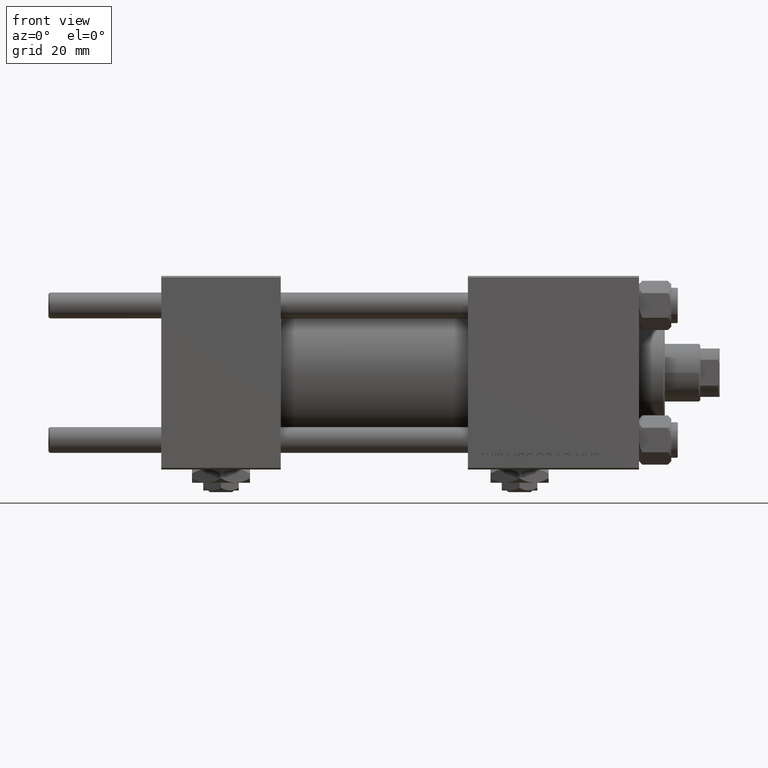
[diagram: clean part render]
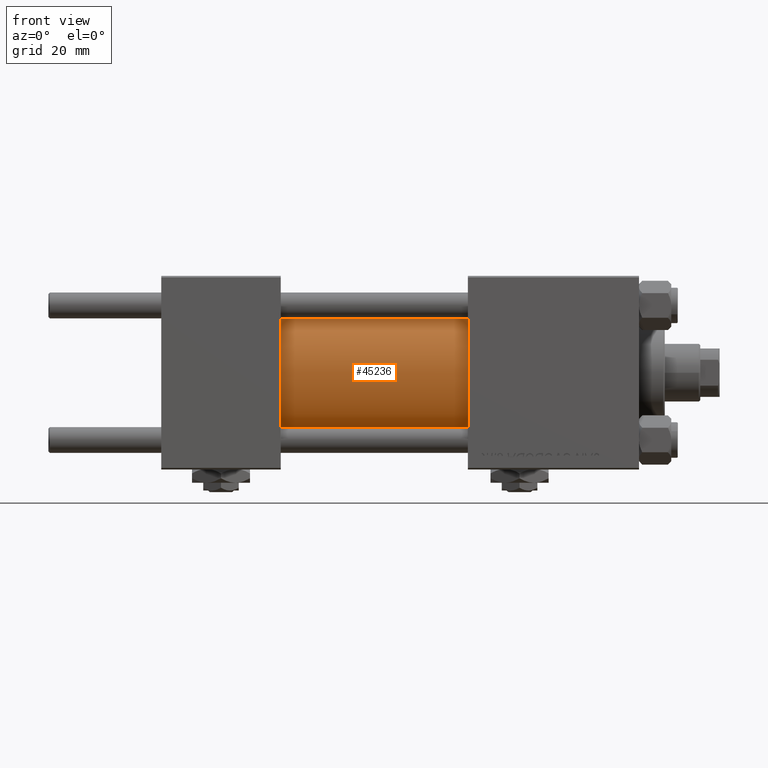
[diagram: same view with one face highlighted and labeled with its STEP entity id]
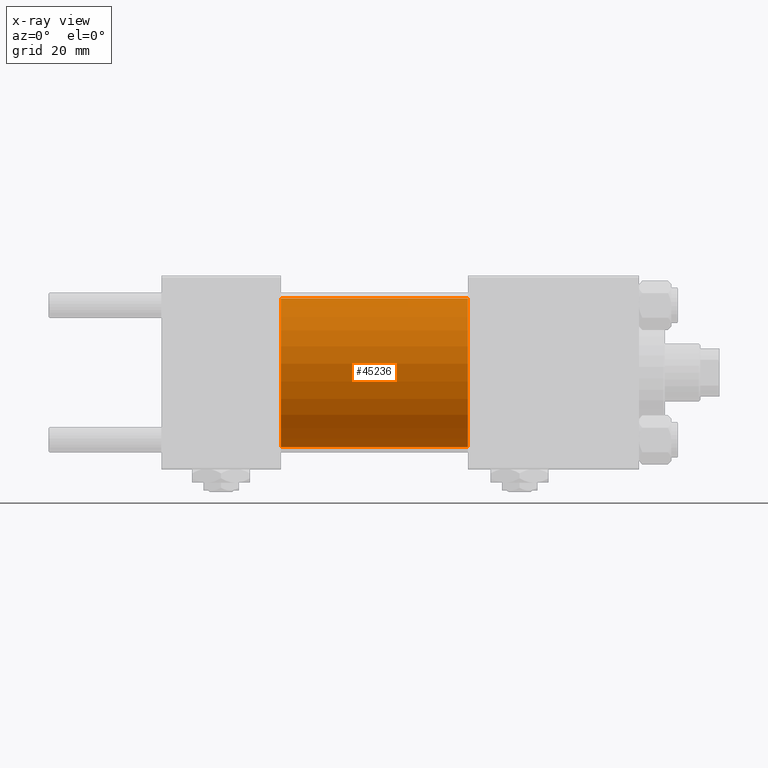
[diagram: x-ray of the same camera — body ghosted, the highlighted face saturated]
A machine part, front view. The second image highlights one B-rep face of the part: STEP entity #45236.
The next image is the same camera in x-ray: the body ghosted, the highlighted face saturated — about 0% of this face is hidden behind the body in this view.
In plain terms, the highlighted cylindrical surface (partial cylindrical patch) has radius 23 mm, axis along (-1, -0, -0).
Its self-contained STEP definition (entity closure, byte-faithful):
#982 = CYLINDRICAL_SURFACE ( 'NONE', #18693, 23.00000000000000000 ) ;
#992 = CARTESIAN_POINT ( 'NONE',  ( 37.00000000000000000, 0.000000000000000000, 0.000000000000000000 ) ) ;
#1115 = AXIS2_PLACEMENT_3D ( 'NONE', #992, #44579, #20418 ) ;
#2833 = DIRECTION ( 'NONE',  ( -1.000000000000000000, -0.000000000000000000, -0.000000000000000000 ) ) ;
#2909 = ORIENTED_EDGE ( 'NONE', *, *, #3665, .F. ) ;
#3665 = EDGE_CURVE ( 'NONE', #48627, #47737, #21680, .T. ) ;
#4836 = VERTEX_POINT ( 'NONE', #33881 ) ;
#6759 = CARTESIAN_POINT ( 'NONE',  ( 95.00000000000000000, 2.816687638038911957E-15, -23.00000000000000000 ) ) ;
#6839 = VECTOR ( 'NONE', #27447, 1000.000000000000000 ) ;
#8428 = DIRECTION ( 'NONE',  ( 0.000000000000000000, 0.000000000000000000, -1.000000000000000000 ) ) ;
#9094 = FACE_OUTER_BOUND ( 'NONE', #13047, .T. ) ;
#13013 = ORIENTED_EDGE ( 'NONE', *, *, #38482, .T. ) ;
#13047 = EDGE_LOOP ( 'NONE', ( #31605, #2909, #13013, #34772 ) ) ;
#13826 = CARTESIAN_POINT ( 'NONE',  ( 95.00000000000000000, 0.000000000000000000, 0.000000000000000000 ) ) ;
#18693 = AXIS2_PLACEMENT_3D ( 'NONE', #13826, #25400, #41409 ) ;
#20418 = DIRECTION ( 'NONE',  ( 0.000000000000000000, 0.000000000000000000, 1.000000000000000000 ) ) ;
#21680 = CIRCLE ( 'NONE', #37609, 23.00000000000000000 ) ;
#25400 = DIRECTION ( 'NONE',  ( -1.000000000000000000, -0.000000000000000000, -0.000000000000000000 ) ) ;
#25681 = CARTESIAN_POINT ( 'NONE',  ( 95.00000000000000000, 2.816687638038911957E-15, -23.00000000000000000 ) ) ;
#26089 = VECTOR ( 'NONE', #2833, 1000.000000000000000 ) ;
#26481 = LINE ( 'NONE', #6759, #26089 ) ;
#27199 = CARTESIAN_POINT ( 'NONE',  ( 95.00000000000000000, 0.000000000000000000, 23.00000000000000000 ) ) ;
#27289 = VERTEX_POINT ( 'NONE', #48224 ) ;
#27447 = DIRECTION ( 'NONE',  ( -1.000000000000000000, -0.000000000000000000, -0.000000000000000000 ) ) ;
#28393 = CARTESIAN_POINT ( 'NONE',  ( 95.00000000000000000, 0.000000000000000000, 23.00000000000000000 ) ) ;
#31605 = ORIENTED_EDGE ( 'NONE', *, *, #36999, .F. ) ;
#33881 = CARTESIAN_POINT ( 'NONE',  ( 37.00000000000000000, 2.816687638038911957E-15, -23.00000000000000000 ) ) ;
#34772 = ORIENTED_EDGE ( 'NONE', *, *, #46839, .T. ) ;
#36999 = EDGE_CURVE ( 'NONE', #47737, #4836, #26481, .T. ) ;
#37609 = AXIS2_PLACEMENT_3D ( 'NONE', #41261, #40992, #8428 ) ;
#38482 = EDGE_CURVE ( 'NONE', #48627, #27289, #43727, .T. ) ;
#39675 = CIRCLE ( 'NONE', #1115, 23.00000000000000000 ) ;
#40992 = DIRECTION ( 'NONE',  ( 1.000000000000000000, 0.000000000000000000, 0.000000000000000000 ) ) ;
#41261 = CARTESIAN_POINT ( 'NONE',  ( 95.00000000000000000, 0.000000000000000000, 0.000000000000000000 ) ) ;
#41409 = DIRECTION ( 'NONE',  ( 0.000000000000000000, 0.000000000000000000, 1.000000000000000000 ) ) ;
#43727 = LINE ( 'NONE', #27199, #6839 ) ;
#44579 = DIRECTION ( 'NONE',  ( 1.000000000000000000, -0.000000000000000000, 0.000000000000000000 ) ) ;
#45236 = ADVANCED_FACE ( 'NONE', ( #9094 ), #982, .T. ) ;
#46839 = EDGE_CURVE ( 'NONE', #27289, #4836, #39675, .T. ) ;
#47737 = VERTEX_POINT ( 'NONE', #25681 ) ;
#48224 = CARTESIAN_POINT ( 'NONE',  ( 37.00000000000000000, 0.000000000000000000, 23.00000000000000000 ) ) ;
#48627 = VERTEX_POINT ( 'NONE', #28393 ) ;